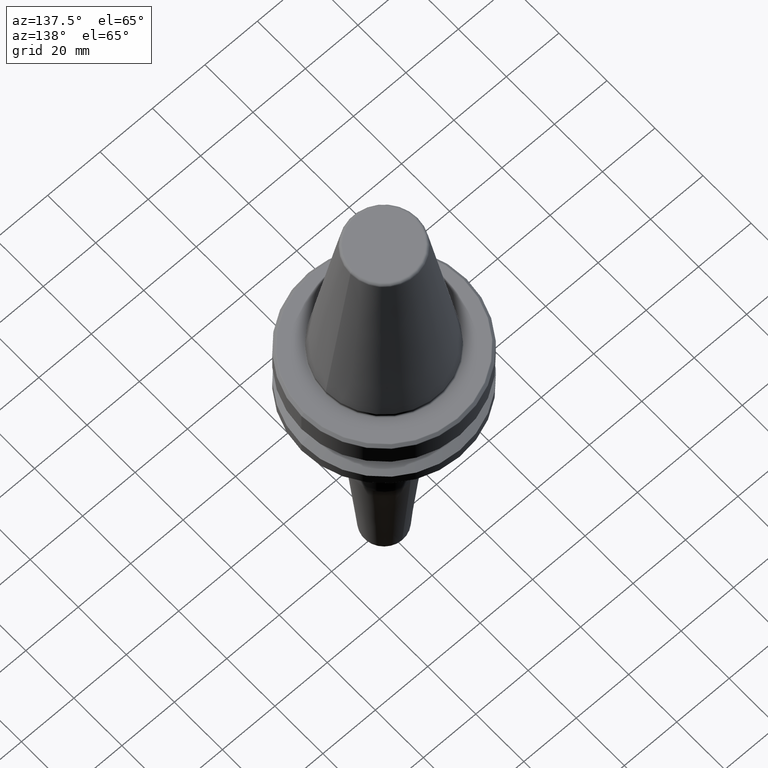
[diagram: clean part render]
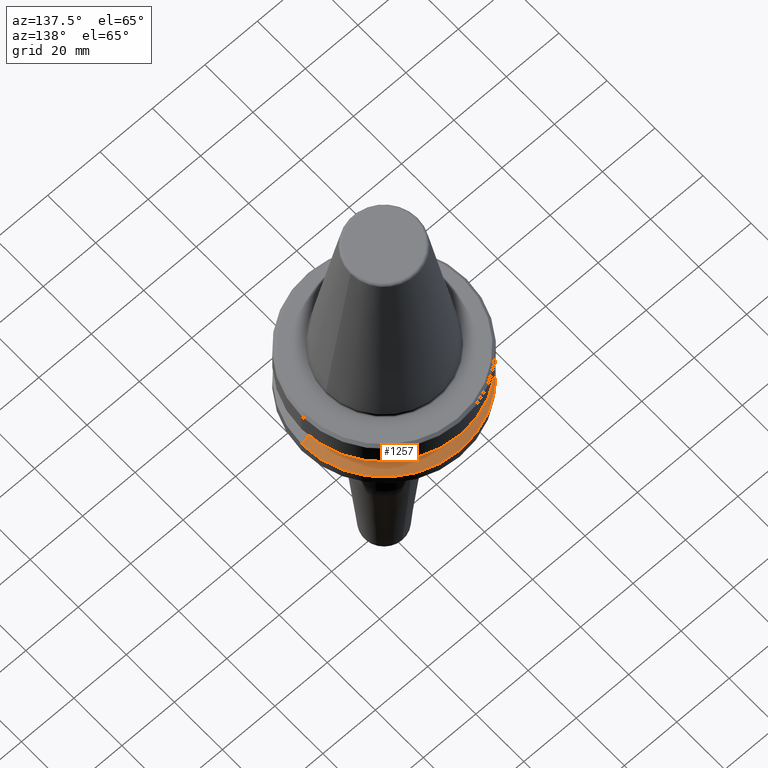
[diagram: same view with one face highlighted and labeled with its STEP entity id]
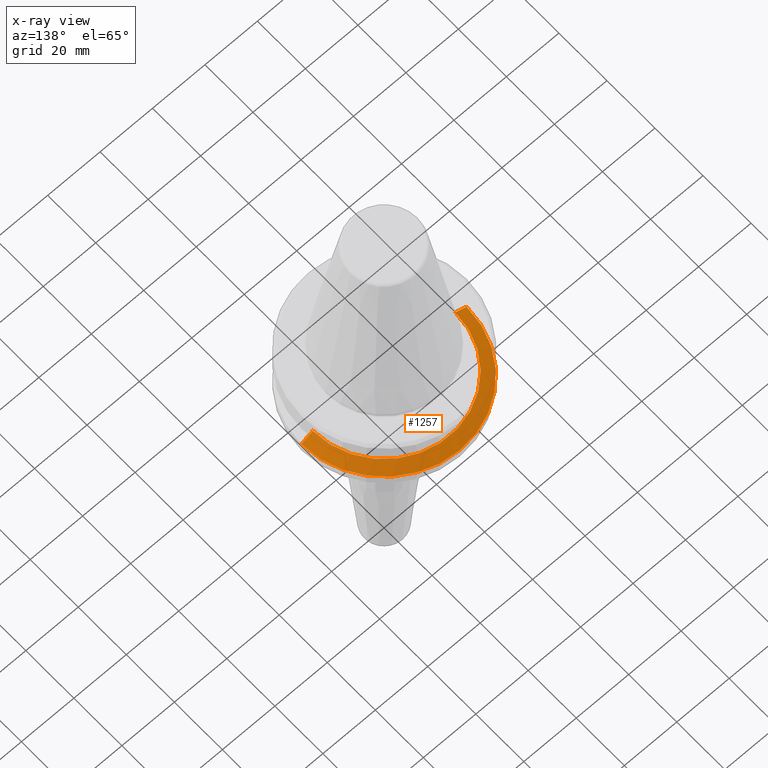
[diagram: x-ray of the same camera — body ghosted, the highlighted face saturated]
A machine part, auxiliary view. The second image highlights one B-rep face of the part: STEP entity #1257.
The next image is the same camera in x-ray: the body ghosted, the highlighted face saturated — about 0% of this face is hidden behind the body in this view.
In plain terms, the highlighted conical surface has half-angle 60 deg.
Its self-contained STEP definition (entity closure, byte-faithful):
#13 = AXIS2_PLACEMENT_3D ( 'NONE', #1045, #466, #939 ) ;
#14 = FACE_OUTER_BOUND ( 'NONE', #1218, .T. ) ;
#40 = CARTESIAN_POINT ( 'NONE',  ( 0.0000000000000000000, 0.0000000000000000000, -19.10000000000000500 ) ) ;
#58 = VERTEX_POINT ( 'NONE', #415 ) ;
#63 = ORIENTED_EDGE ( 'NONE', *, *, #1087, .F. ) ;
#92 = VERTEX_POINT ( 'NONE', #813 ) ;
#93 = DIRECTION ( 'NONE',  ( 0.8660254037844403700, 1.060575238724909000E-016, -0.4999999999999970000 ) ) ;
#159 = AXIS2_PLACEMENT_3D ( 'NONE', #1224, #1144, #757 ) ;
#178 = ORIENTED_EDGE ( 'NONE', *, *, #1104, .T. ) ;
#192 = DIRECTION ( 'NONE',  ( -0.8660254037844403700, 0.0000000000000000000, -0.4999999999999970000 ) ) ;
#315 = VECTOR ( 'NONE', #93, 1000.000000000000000 ) ;
#321 = CARTESIAN_POINT ( 'NONE',  ( -31.50000000000000000, 3.857637417314162700E-015, -21.60014200631675500 ) ) ;
#341 = DIRECTION ( 'NONE',  ( 0.0000000000000000000, 0.0000000000000000000, -1.000000000000000000 ) ) ;
#415 = CARTESIAN_POINT ( 'NONE',  ( 31.50000000000000000, 0.0000000000000000000, -21.60014200631675500 ) ) ;
#449 = CARTESIAN_POINT ( 'NONE',  ( -27.16962701892216700, 0.0000000000000000000, -19.10000000000000500 ) ) ;
#466 = DIRECTION ( 'NONE',  ( -0.0000000000000000000, -0.0000000000000000000, 1.000000000000000000 ) ) ;
#468 = CIRCLE ( 'NONE', #159, 31.50000000000000000 ) ;
#476 = VERTEX_POINT ( 'NONE', #662 ) ;
#494 = ORIENTED_EDGE ( 'NONE', *, *, #628, .T. ) ;
#574 = LINE ( 'NONE', #593, #315 ) ;
#593 = CARTESIAN_POINT ( 'NONE',  ( 27.16962701892216700, 3.327319676275047600E-015, -19.10000000000000500 ) ) ;
#628 = EDGE_CURVE ( 'NONE', #476, #58, #574, .T. ) ;
#662 = CARTESIAN_POINT ( 'NONE',  ( 27.16962701892216700, 3.592478546794605500E-015, -19.10000000000000500 ) ) ;
#702 = ORIENTED_EDGE ( 'NONE', *, *, #1271, .F. ) ;
#746 = CONICAL_SURFACE ( 'NONE', #1263, 27.16962701892216700, 1.047197551196601200 ) ;
#757 = DIRECTION ( 'NONE',  ( 1.000000000000000000, 0.0000000000000000000, 0.0000000000000000000 ) ) ;
#813 = CARTESIAN_POINT ( 'NONE',  ( -27.16962701892216700, 0.0000000000000000000, -19.10000000000000500 ) ) ;
#939 = DIRECTION ( 'NONE',  ( 1.000000000000000000, 0.0000000000000000000, 0.0000000000000000000 ) ) ;
#979 = CIRCLE ( 'NONE', #13, 27.16962701892216700 ) ;
#987 = VERTEX_POINT ( 'NONE', #321 ) ;
#991 = VECTOR ( 'NONE', #192, 1000.000000000000000 ) ;
#1045 = CARTESIAN_POINT ( 'NONE',  ( 0.0000000000000000000, 0.0000000000000000000, -19.10000000000000500 ) ) ;
#1087 = EDGE_CURVE ( 'NONE', #476, #92, #979, .T. ) ;
#1104 = EDGE_CURVE ( 'NONE', #58, #987, #468, .T. ) ;
#1144 = DIRECTION ( 'NONE',  ( -0.0000000000000000000, -0.0000000000000000000, 1.000000000000000000 ) ) ;
#1218 = EDGE_LOOP ( 'NONE', ( #63, #494, #178, #702 ) ) ;
#1224 = CARTESIAN_POINT ( 'NONE',  ( 0.0000000000000000000, 0.0000000000000000000, -21.60014200631675500 ) ) ;
#1230 = DIRECTION ( 'NONE',  ( -1.000000000000000000, 0.0000000000000000000, 0.0000000000000000000 ) ) ;
#1256 = LINE ( 'NONE', #449, #991 ) ;
#1257 = ADVANCED_FACE ( 'NONE', ( #14 ), #746, .T. ) ;
#1263 = AXIS2_PLACEMENT_3D ( 'NONE', #40, #341, #1230 ) ;
#1271 = EDGE_CURVE ( 'NONE', #92, #987, #1256, .T. ) ;